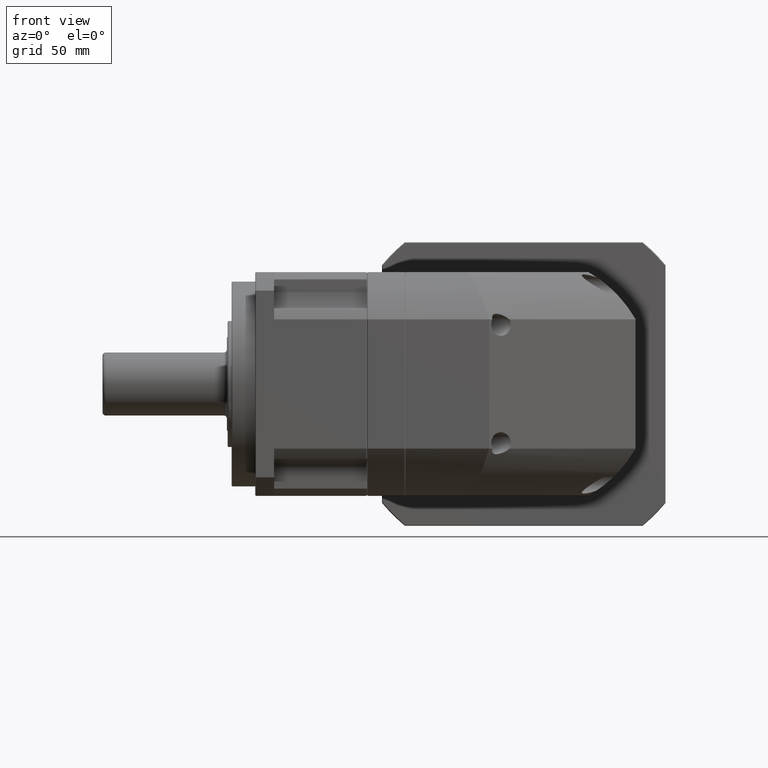
[diagram: clean part render]
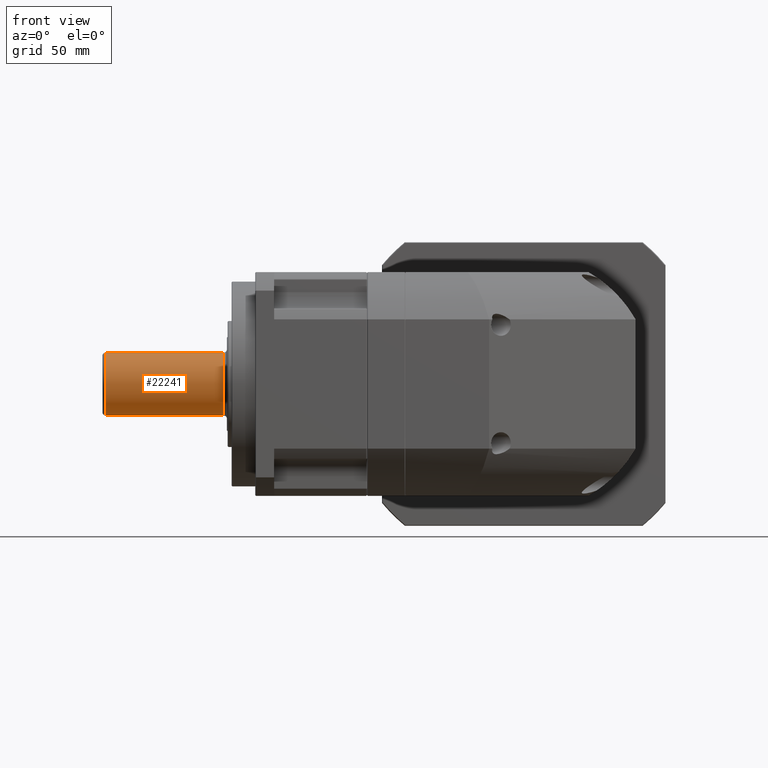
[diagram: same view with one face highlighted and labeled with its STEP entity id]
A machine part, front view. The second image highlights one B-rep face of the part: STEP entity #22241.
In plain terms, the highlighted cylindrical surface (edge-blend (fillet) strip) has radius 20 mm, axis along (-1, 0, 0).
Its self-contained STEP definition (entity closure, byte-faithful):
#17366=CARTESIAN_POINT('',(-5.E0,0.E0,0.E0));
#17367=DIRECTION('',(1.E0,0.E0,0.E0));
#17368=DIRECTION('',(0.E0,0.E0,1.E0));
#17369=AXIS2_PLACEMENT_3D('',#17366,#17367,#17368);
#17371=DIRECTION('',(1.E0,0.E0,0.E0));
#17372=VECTOR('',#17371,7.5E1);
#17373=CARTESIAN_POINT('',(-8.E1,0.E0,-2.E1));
#17374=LINE('',#17373,#17372);
#17375=DIRECTION('',(1.E0,0.E0,0.E0));
#17376=VECTOR('',#17375,7.5E1);
#17377=CARTESIAN_POINT('',(-8.E1,0.E0,2.E1));
#17378=LINE('',#17377,#17376);
#17454=CARTESIAN_POINT('',(-8.E1,0.E0,0.E0));
#17455=DIRECTION('',(-1.E0,0.E0,0.E0));
#17456=DIRECTION('',(0.E0,0.E0,-1.E0));
#17457=AXIS2_PLACEMENT_3D('',#17454,#17455,#17456);
#17885=CARTESIAN_POINT('',(-8.E1,0.E0,2.E1));
#17886=VERTEX_POINT('',#17885);
#17905=CARTESIAN_POINT('',(-8.E1,0.E0,-2.E1));
#17906=VERTEX_POINT('',#17905);
#17977=CARTESIAN_POINT('',(-5.E0,0.E0,-2.E1));
#17978=VERTEX_POINT('',#17977);
#18261=CARTESIAN_POINT('',(-5.E0,0.E0,2.E1));
#18262=VERTEX_POINT('',#18261);
#22227=CARTESIAN_POINT('',(0.E0,0.E0,0.E0));
#22228=DIRECTION('',(-1.E0,0.E0,0.E0));
#22229=DIRECTION('',(0.E0,0.E0,1.E0));
#22230=AXIS2_PLACEMENT_3D('',#22227,#22228,#22229);
#22231=CYLINDRICAL_SURFACE('',#22230,2.E1);
#22233=ORIENTED_EDGE('',*,*,#22232,.F.);
#22235=ORIENTED_EDGE('',*,*,#22234,.T.);
#22237=ORIENTED_EDGE('',*,*,#22236,.T.);
#22238=ORIENTED_EDGE('',*,*,#22221,.T.);
#22239=EDGE_LOOP('',(#22233,#22235,#22237,#22238));
#22240=FACE_OUTER_BOUND('',#22239,.F.);
#22241=ADVANCED_FACE('',(#22240),#22231,.T.);
#17370=CIRCLE('',#17369,2.E1);
#17458=CIRCLE('',#17457,2.E1);
#22221=EDGE_CURVE('',#18262,#17978,#17370,.T.);
#22232=EDGE_CURVE('',#17906,#17978,#17374,.T.);
#22234=EDGE_CURVE('',#17906,#17886,#17458,.T.);
#22236=EDGE_CURVE('',#17886,#18262,#17378,.T.);